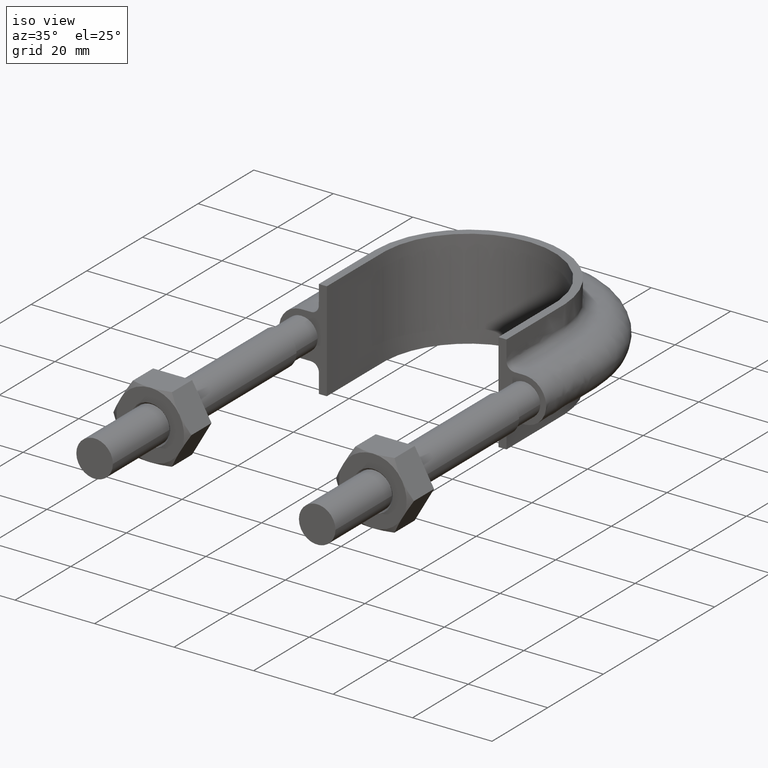
[diagram: clean part render]
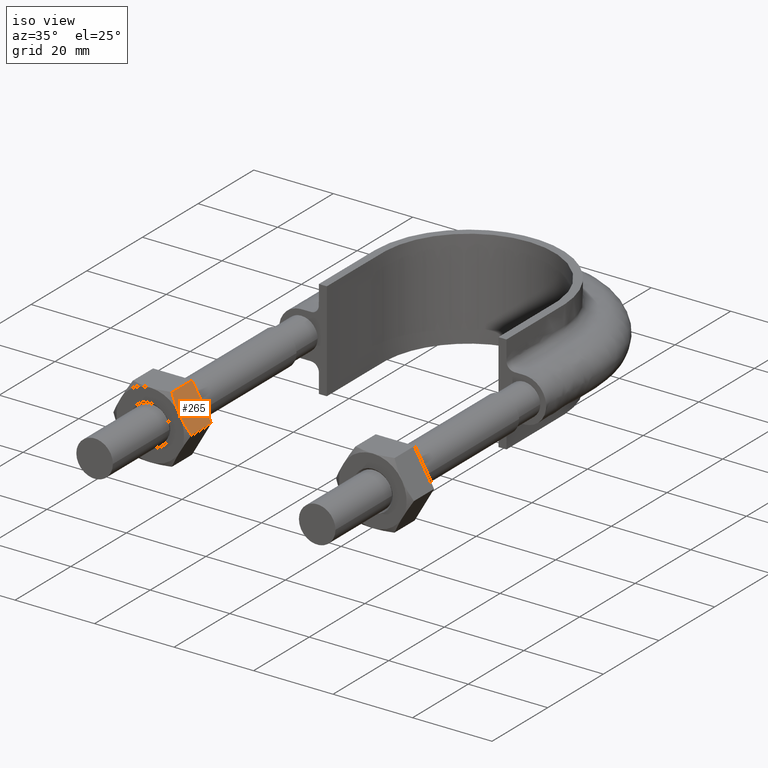
[diagram: same view with one face highlighted and labeled with its STEP entity id]
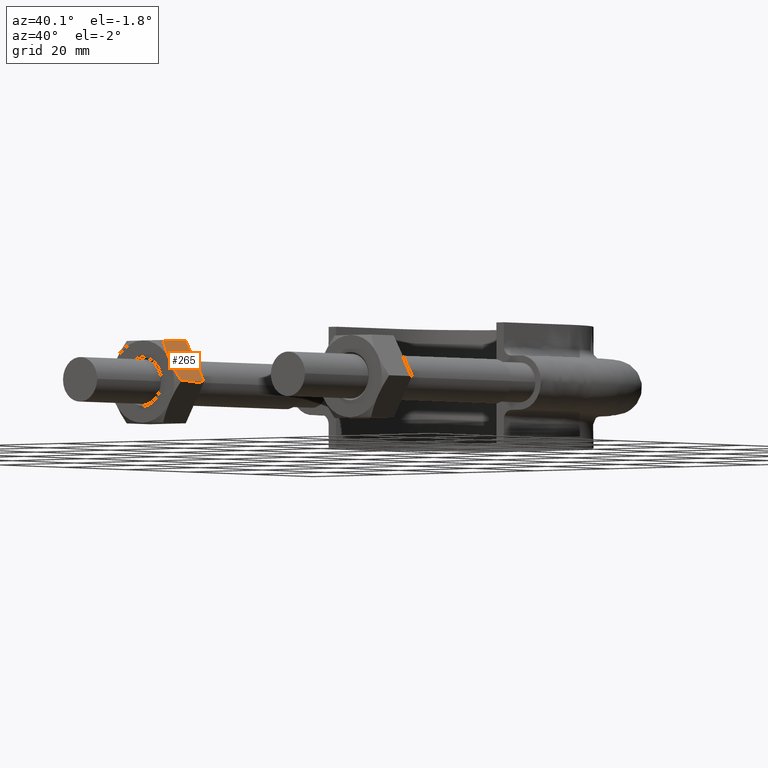
[diagram: same view with one face highlighted and labeled with its STEP entity id]
A machine part, iso view. The second image highlights one B-rep face of the part: STEP entity #265.
A second angle (auxiliary view) of the same face is appended — the face is thin or edge-on in the first view.
In plain terms, the highlighted planar face has unit normal (-0.866, 0, -0.5).
Its self-contained STEP definition (entity closure, byte-faithful):
#265 = ADVANCED_FACE( '', ( #402 ), #403, .F. );
#402 = FACE_OUTER_BOUND( '', #1399, .T. );
#403 = PLANE( '', #1400 );
#1399 = EDGE_LOOP( '', ( #1781, #1782, #1783, #1784, #1785 ) );
#1400 = AXIS2_PLACEMENT_3D( '', #1786, #1787, #1788 );
#1781 = ORIENTED_EDGE( '', *, *, #2084, .F. );
#1782 = ORIENTED_EDGE( '', *, *, #2099, .F. );
#1783 = ORIENTED_EDGE( '', *, *, #2079, .F. );
#1784 = ORIENTED_EDGE( '', *, *, #2076, .F. );
#1785 = ORIENTED_EDGE( '', *, *, #2098, .F. );
#1786 = CARTESIAN_POINT( '', ( -23.0925227118884, 27.9999999999984, 8.49999999999788 ) );
#1787 = DIRECTION( '', ( -0.866025403784525, 2.42723201254774E-016, -0.499999999999850 ) );
#1788 = DIRECTION( '', ( -0.499999999999850, -2.69476886643776E-032, 0.866025403784525 ) );
#2076 = EDGE_CURVE( '', #2279, #2263, #2281, .T. );
#2079 = EDGE_CURVE( '', #2263, #2282, #2286, .T. );
#2084 = EDGE_CURVE( '', #2292, #2294, #2295, .T. );
#2098 = EDGE_CURVE( '', #2294, #2279, #2314, .F. );
#2099 = EDGE_CURVE( '', #2282, #2292, #2315, .T. );
#2263 = VERTEX_POINT( '', #2785 );
#2279 = VERTEX_POINT( '', #2805 );
#2281 = LINE( '', #2807, #2808 );
#2282 = VERTEX_POINT( '', #2809 );
#2286 = LINE( '', #2814, #2815 );
#2292 = VERTEX_POINT( '', #2826 );
#2294 = VERTEX_POINT( '', #2828 );
#2295 = B_SPLINE_CURVE_WITH_KNOTS( '', 3, ( #2829, #2830, #2831, #2832, #2833, #2834 ), .UNSPECIFIED., .F., .F., ( 4, 2, 4 ), ( 9.12174282298097E-017, 0.00246745482903708, 0.00493490965807406 ), .UNSPECIFIED. );
#2314 = LINE( '', #2873, #2874 );
#2315 = B_SPLINE_CURVE_WITH_KNOTS( '', 3, ( #2875, #2876, #2877, #2878, #2879, #2880 ), .UNSPECIFIED., .F., .F., ( 4, 2, 4 ), ( 3.74019001497836E-015, 0.00246745482903790, 0.00493490965807205 ), .UNSPECIFIED. );
#2785 = CARTESIAN_POINT( '', ( -18.2000343881808, 27.9999999999984, 0.0259616478954687 ) );
#2805 = CARTESIAN_POINT( '', ( -23.0775337474859, 27.9999999999984, 8.47403835209989 ) );
#2807 = CARTESIAN_POINT( '', ( -23.0887840678325, 27.9999999999984, 8.49352447854162 ) );
#2808 = VECTOR( '', #3164, 1000.00000000000 );
#2809 = CARTESIAN_POINT( '', ( -18.2000343881808, 20.7505553499465, 0.0259616478954685 ) );
#2814 = CARTESIAN_POINT( '', ( -18.2000343881808, 27.9999999999984, 0.0259616478954705 ) );
#2815 = VECTOR( '', #3169, 1000.00000000000 );
#2826 = CARTESIAN_POINT( '', ( -20.6387840678324, 19.9999999999994, 4.24999999999819 ) );
#2828 = CARTESIAN_POINT( '', ( -23.0775337474850, 20.7505553499460, 8.47403835209832 ) );
#2829 = CARTESIAN_POINT( '', ( -20.6387840678333, 19.9999999999988, 4.24999999999766 ) );
#2830 = CARTESIAN_POINT( '', ( -21.0548670429287, 19.9999999999988, 4.97067685302759 ) );
#2831 = CARTESIAN_POINT( '', ( -21.4654371916763, 20.0716504305279, 5.68180521072973 ) );
#2832 = CARTESIAN_POINT( '', ( -22.2775056556649, 20.3328582843698, 7.08834904958305 ) );
#2833 = CARTESIAN_POINT( '', ( -22.6790699211712, 20.5215585493645, 7.78387875994433 ) );
#2834 = CARTESIAN_POINT( '', ( -23.0775337474841, 20.7505553499455, 8.47403835209676 ) );
#2873 = CARTESIAN_POINT( '', ( -23.0775337474859, 27.9999999999984, 8.47403835209989 ) );
#2874 = VECTOR( '', #3199, 1000.00000000000 );
#2875 = CARTESIAN_POINT( '', ( -18.2000343881826, 20.7505553499455, 0.0259616478986069 ) );
#2876 = CARTESIAN_POINT( '', ( -18.5984982144950, 20.5215585493648, 0.716121240050239 ) );
#2877 = CARTESIAN_POINT( '', ( -19.0000624800036, 20.3328582843690, 1.41165095041548 ) );
#2878 = CARTESIAN_POINT( '', ( -19.8121309439913, 20.0716504305277, 2.81819478926722 ) );
#2879 = CARTESIAN_POINT( '', ( -20.2227010927384, 19.9999999999988, 3.52932314696856 ) );
#2880 = CARTESIAN_POINT( '', ( -20.6387840678333, 19.9999999999988, 4.24999999999766 ) );
#3164 = DIRECTION( '', ( 0.499999999999850, -6.94336247798948E-017, -0.866025403784525 ) );
#3169 = DIRECTION( '', ( -2.44921270764476E-016, -1.00000000000000, -6.12303176911191E-017 ) );
#3199 = DIRECTION( '', ( -2.44921270764476E-016, -1.00000000000000, -6.12303176911191E-017 ) );